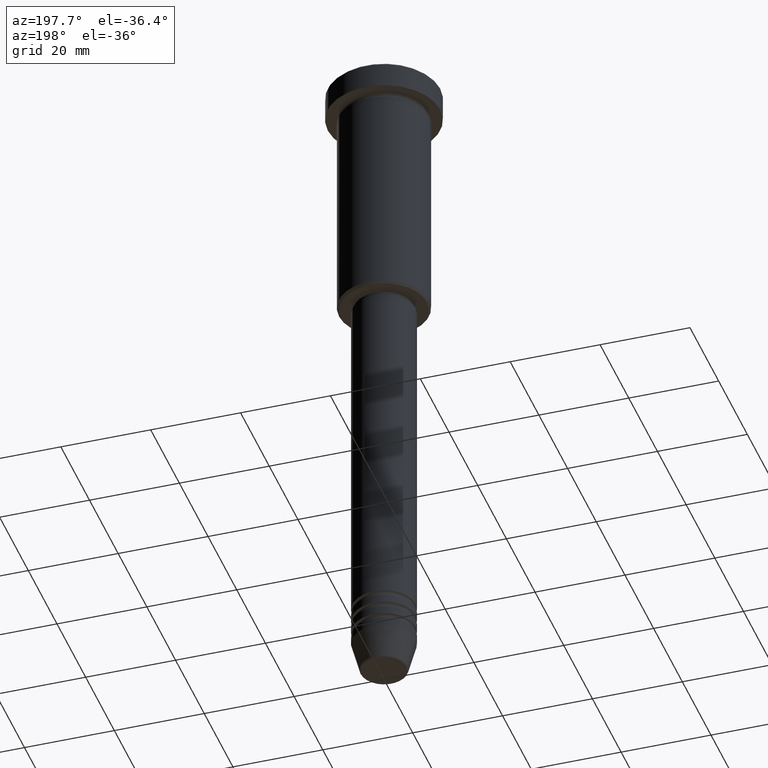
[diagram: clean part render]
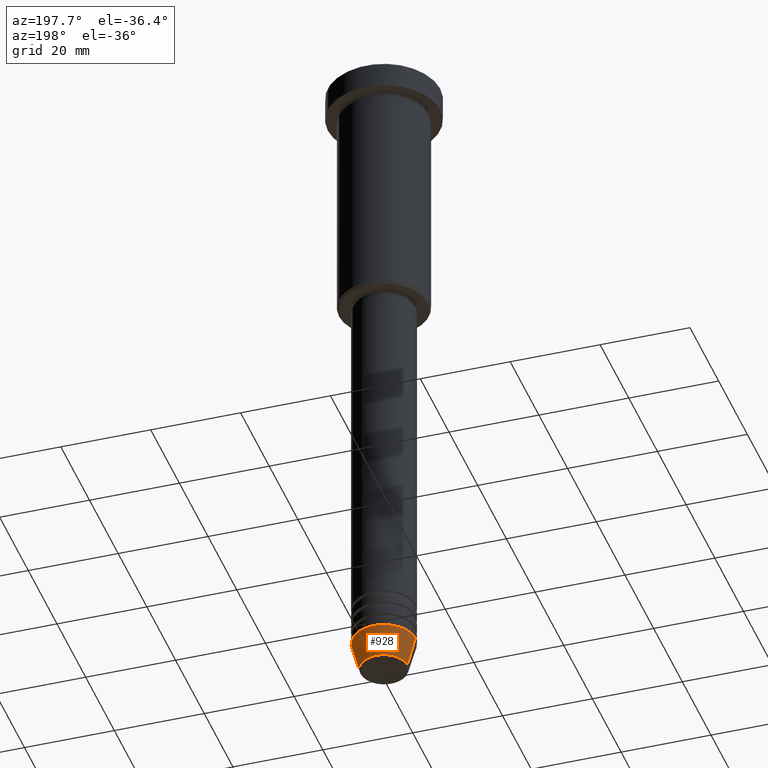
[diagram: same view with one face highlighted and labeled with its STEP entity id]
A machine part, auxiliary view. The second image highlights one B-rep face of the part: STEP entity #928.
In plain terms, the highlighted conical surface has half-angle 15 deg.
Its self-contained STEP definition (entity closure, byte-faithful):
#77 = EDGE_CURVE ( 'NONE', #344, #559, #944, .T. ) ;
#102 = ORIENTED_EDGE ( 'NONE', *, *, #734, .T. ) ;
#129 = AXIS2_PLACEMENT_3D ( 'NONE', #1002, #924, #820 ) ;
#195 = DIRECTION ( 'NONE',  ( -0.000000000000000000, -0.000000000000000000, 1.000000000000000000 ) ) ;
#198 = VERTEX_POINT ( 'NONE', #441 ) ;
#248 = EDGE_CURVE ( 'NONE', #496, #198, #355, .T. ) ;
#269 = ORIENTED_EDGE ( 'NONE', *, *, #856, .F. ) ;
#344 = VERTEX_POINT ( 'NONE', #372 ) ;
#355 = LINE ( 'NONE', #708, #784 ) ;
#372 = CARTESIAN_POINT ( 'NONE',  ( 5.223655072137191269, 0.000000000000000000, -150.6294095225512706 ) ) ;
#382 = EDGE_LOOP ( 'NONE', ( #102, #890, #269, #1038 ) ) ;
#406 = CARTESIAN_POINT ( 'NONE',  ( -5.223655072137191269, 7.484830028987061160E-16, -150.6294095225512706 ) ) ;
#423 = CARTESIAN_POINT ( 'NONE',  ( 7.000000000000000000, 0.000000000000000000, -144.0000000000000284 ) ) ;
#425 = FACE_OUTER_BOUND ( 'NONE', #382, .T. ) ;
#441 = CARTESIAN_POINT ( 'NONE',  ( -7.000000000000000000, 8.572527594031473190E-16, -144.0000000000000284 ) ) ;
#485 = DIRECTION ( 'NONE',  ( 1.000000000000000000, 0.000000000000000000, 0.000000000000000000 ) ) ;
#496 = VERTEX_POINT ( 'NONE', #406 ) ;
#523 = AXIS2_PLACEMENT_3D ( 'NONE', #674, #775, #951 ) ;
#559 = VERTEX_POINT ( 'NONE', #423 ) ;
#674 = CARTESIAN_POINT ( 'NONE',  ( 0.000000000000000000, 0.000000000000000000, -144.0000000000000284 ) ) ;
#708 = CARTESIAN_POINT ( 'NONE',  ( -7.000000000000000000, 8.572527594031473190E-16, -144.0000000000000284 ) ) ;
#734 = EDGE_CURVE ( 'NONE', #344, #496, #859, .T. ) ;
#752 = CARTESIAN_POINT ( 'NONE',  ( 0.000000000000000000, 0.000000000000000000, -144.0000000000000284 ) ) ;
#775 = DIRECTION ( 'NONE',  ( -0.000000000000000000, -0.000000000000000000, 1.000000000000000000 ) ) ;
#784 = VECTOR ( 'NONE', #1078, 1000.000000000000000 ) ;
#789 = CIRCLE ( 'NONE', #1072, 7.000000000000000000 ) ;
#820 = DIRECTION ( 'NONE',  ( 1.000000000000000000, 0.000000000000000000, 0.000000000000000000 ) ) ;
#856 = EDGE_CURVE ( 'NONE', #559, #198, #789, .T. ) ;
#859 = CIRCLE ( 'NONE', #129, 5.223655072137191269 ) ;
#881 = CONICAL_SURFACE ( 'NONE', #523, 7.000000000000000000, 0.2617993877991501295 ) ;
#890 = ORIENTED_EDGE ( 'NONE', *, *, #248, .T. ) ;
#924 = DIRECTION ( 'NONE',  ( -0.000000000000000000, -0.000000000000000000, 1.000000000000000000 ) ) ;
#928 = ADVANCED_FACE ( 'NONE', ( #425 ), #881, .T. ) ;
#944 = LINE ( 'NONE', #1140, #1088 ) ;
#951 = DIRECTION ( 'NONE',  ( 1.000000000000000000, 0.000000000000000000, 0.000000000000000000 ) ) ;
#1002 = CARTESIAN_POINT ( 'NONE',  ( 0.000000000000000000, 0.000000000000000000, -150.6294095225512706 ) ) ;
#1029 = DIRECTION ( 'NONE',  ( 0.2588190451025214056, 0.000000000000000000, 0.9659258262890680902 ) ) ;
#1038 = ORIENTED_EDGE ( 'NONE', *, *, #77, .F. ) ;
#1072 = AXIS2_PLACEMENT_3D ( 'NONE', #752, #195, #485 ) ;
#1078 = DIRECTION ( 'NONE',  ( -0.2588190451025214056, 3.169619151431772953E-17, 0.9659258262890680902 ) ) ;
#1088 = VECTOR ( 'NONE', #1029, 1000.000000000000000 ) ;
#1140 = CARTESIAN_POINT ( 'NONE',  ( 7.000000000000000000, 0.000000000000000000, -144.0000000000000284 ) ) ;